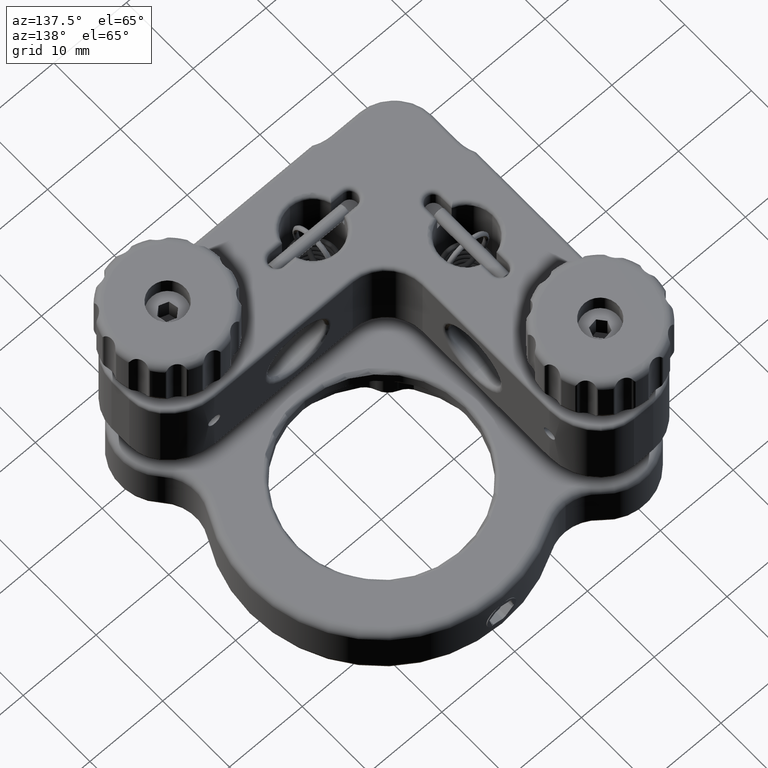
[diagram: clean part render]
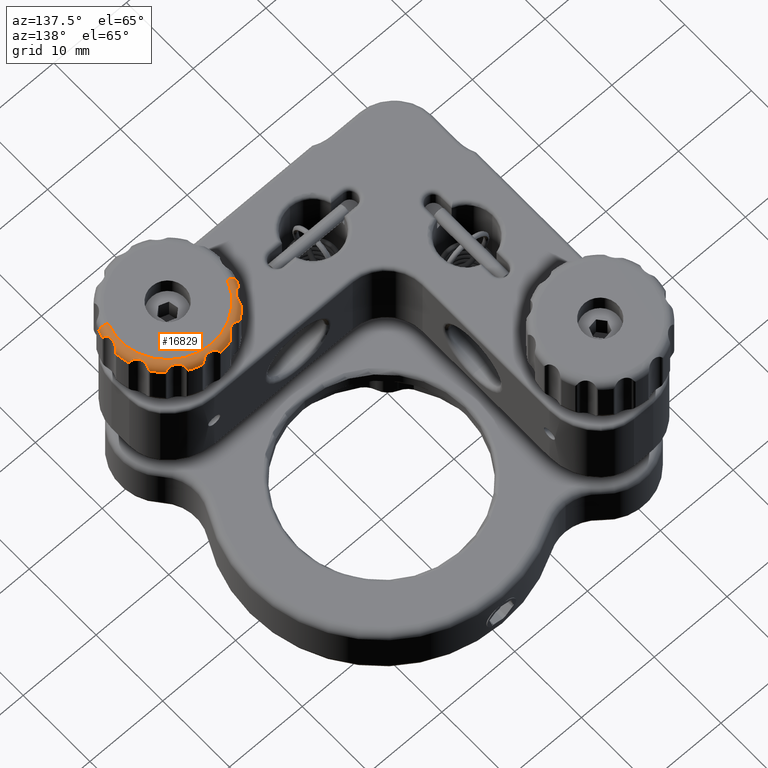
[diagram: same view with one face highlighted and labeled with its STEP entity id]
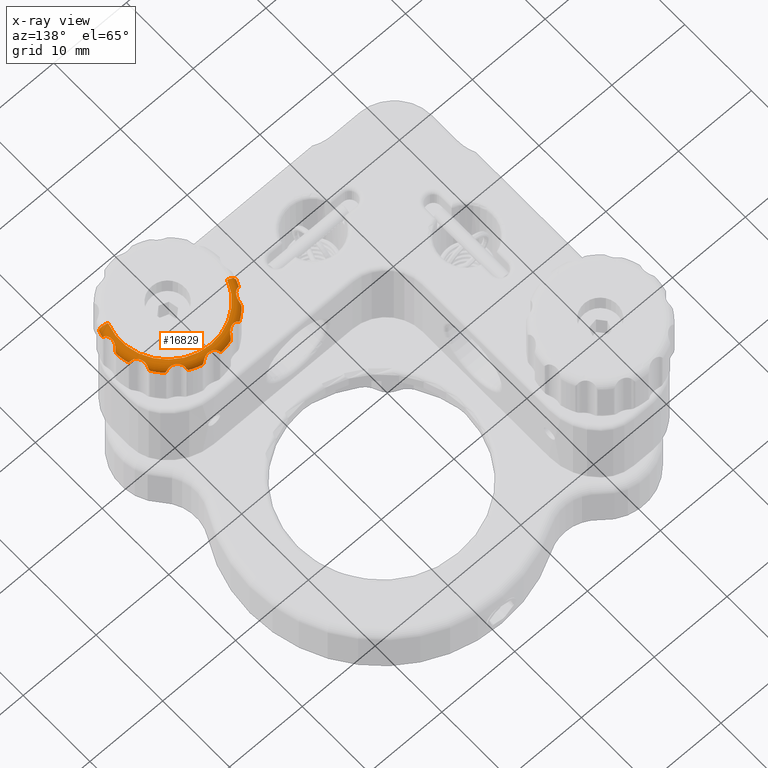
[diagram: x-ray of the same camera — body ghosted, the highlighted face saturated]
A machine part, auxiliary view. The second image highlights one B-rep face of the part: STEP entity #16829.
The next image is the same camera in x-ray: the body ghosted, the highlighted face saturated — about 0% of this face is hidden behind the body in this view.
In plain terms, the highlighted toroidal blend (fillet) surface has major radius 6.5 mm and minor (blend) radius 1 mm.
Its self-contained STEP definition (entity closure, byte-faithful):
#52 = CARTESIAN_POINT ( 'NONE',  ( 37.76544719378181725, 2.379093763780638859, 17.17477800642823738 ) ) ;
#66 = CARTESIAN_POINT ( 'NONE',  ( 24.27866866679519120, 3.327717702762500451, 16.43155508000020859 ) ) ;
#115 = ORIENTED_EDGE ( 'NONE', *, *, #9406, .T. ) ;
#117 = CARTESIAN_POINT ( 'NONE',  ( 27.08620670359334781, 6.282824898060004770, 16.86299989517619480 ) ) ;
#191 = CARTESIAN_POINT ( 'NONE',  ( 28.43166287069869469, 6.566413995580349550, 17.27399028622135546 ) ) ;
#193 = EDGE_CURVE ( 'NONE', #12512, #23707, #22086, .T. ) ;
#258 = CARTESIAN_POINT ( 'NONE',  ( 32.81105756854490352, 7.278511001537226299, 16.57745420283569970 ) ) ;
#268 = CARTESIAN_POINT ( 'NONE',  ( 24.27866866679519120, 3.327717702762500451, 16.43155508000020859 ) ) ;
#311 = B_SPLINE_CURVE_WITH_KNOTS ( 'NONE', 3,
 ( #17035, #13212, #12967, #18714, #5245, #14889, #3342, #11094, #19218, #3223, #17170, #24917, #24785, #7519 ),
 .UNSPECIFIED., .F., .F.,
 ( 4, 2, 2, 2, 2, 2, 4 ),
 ( 0.0004549188434784758777, 0.0007454011220209078373, 0.001035883400563339905, 0.001616847957648207511, 0.002197812514733075984, 0.002488294793275510654, 0.002778777071817944890 ),
 .UNSPECIFIED. ) ;
#321 = DIRECTION ( 'NONE',  ( 2.163821192866276569E-17, -6.251245436143288021E-17, -1.000000000000000000 ) ) ;
#380 = CARTESIAN_POINT ( 'NONE',  ( 38.17647115215053333, -1.587322412170117047, 16.97253295274547824 ) ) ;
#382 = CARTESIAN_POINT ( 'NONE',  ( 36.12653657933960716, 5.432556354113025066, 16.72262169492749706 ) ) ;
#417 = CARTESIAN_POINT ( 'NONE',  ( 24.46914313112054273, 3.484189321045987775, 16.86299989517620190 ) ) ;
#425 = ORIENTED_EDGE ( 'NONE', *, *, #7481, .T. ) ;
#455 = VERTEX_POINT ( 'NONE', #17483 ) ;
#535 = CARTESIAN_POINT ( 'NONE',  ( 34.49810638636336080, 6.479438514903956836, 16.94416161686852007 ) ) ;
#717 = CARTESIAN_POINT ( 'NONE',  ( 36.26575391880941623, 5.340583831992932851, 16.43155508000020859 ) ) ;
#768 = AXIS2_PLACEMENT_3D ( 'NONE', #24717, #13392, #1617 ) ;
#777 = CARTESIAN_POINT ( 'NONE',  ( 25.57764956148147562, 5.121636911701532568, 16.72515179860782197 ) ) ;
#911 = CARTESIAN_POINT ( 'NONE',  ( 34.76842440557869907, 5.958542757001199064, 17.27444478420911622 ) ) ;
#957 = DIRECTION ( 'NONE',  ( 2.163821192866276569E-17, -6.251245436143288021E-17, -1.000000000000000000 ) ) ;
#1027 = ORIENTED_EDGE ( 'NONE', *, *, #1309, .T. ) ;
#1030 = CARTESIAN_POINT ( 'NONE',  ( 37.08964572481735900, -2.272930915407224362, 17.43155508000024412 ) ) ;
#1066 = VERTEX_POINT ( 'NONE', #1030 ) ;
#1151 = CARTESIAN_POINT ( 'NONE',  ( 38.46637500377173779, 0.3547219916117436700, 16.65465079033253559 ) ) ;
#1293 = CARTESIAN_POINT ( 'NONE',  ( 28.85853647951745060, 7.155989088194765202, 16.72262169492747930 ) ) ;
#1309 = EDGE_CURVE ( 'NONE', #5777, #14584, #5394, .T. ) ;
#1407 = CARTESIAN_POINT ( 'NONE',  ( 26.84301516957355105, 6.242553733817931771, 16.43155508000019438 ) ) ;
#1427 = CARTESIAN_POINT ( 'NONE',  ( 29.00779568985854340, 7.230568579762935322, 16.43155508000020149 ) ) ;
#1583 = CIRCLE ( 'NONE', #768, 6.500000000000021316 ) ;
#1617 = DIRECTION ( 'NONE',  ( 0.9368685730488215402, -0.3496816792934180351, 0.000000000000000000 ) ) ;
#1748 = DIRECTION ( 'NONE',  ( -2.163821192866276569E-17, 6.251245436143288021E-17, 1.000000000000000000 ) ) ;
#1750 = VERTEX_POINT ( 'NONE', #17286 ) ;
#2062 = DIRECTION ( 'NONE',  ( 2.163821192866276569E-17, -6.251245436143288021E-17, -1.000000000000000000 ) ) ;
#2076 = CARTESIAN_POINT ( 'NONE',  ( 28.76194796046159752, 6.965226959816559926, 17.01490933152842189 ) ) ;
#2085 = DIRECTION ( 'NONE',  ( 0.9368685730488217622, -0.3496816792934172580, 0.000000000000000000 ) ) ;
#2089 = CARTESIAN_POINT ( 'NONE',  ( 30.99999999999999645, 7.806757977350286959E-17, 16.43155508000023701 ) ) ;
#2224 = CARTESIAN_POINT ( 'NONE',  ( 37.08964572481735900, -2.272930915407224806, 16.43155508000023701 ) ) ;
#2293 = ORIENTED_EDGE ( 'NONE', *, *, #18213, .F. ) ;
#2440 = CARTESIAN_POINT ( 'NONE',  ( 38.23056857976288114, 1.992204310141588275, 16.43155508000024412 ) ) ;
#2537 = CARTESIAN_POINT ( 'NONE',  ( 36.03461829388389503, 5.426258867908665628, 16.86299989517819853 ) ) ;
#2561 = CARTESIAN_POINT ( 'NONE',  ( 34.51890683030401874, 6.413758395174952831, 17.01531736824014729 ) ) ;
#2582 = CARTESIAN_POINT ( 'NONE',  ( 28.79444236587353956, 7.025045029976944910, 16.94475072643776770 ) ) ;
#2589 = CARTESIAN_POINT ( 'NONE',  ( 37.44913426673232237, 2.729179706982604703, 17.29749177960178841 ) ) ;
#2611 = CIRCLE ( 'NONE', #12305, 7.500000000000023093 ) ;
#2673 = CARTESIAN_POINT ( 'NONE',  ( 38.26800009982223827, -1.723432734081720596, 16.72262169492747219 ) ) ;
#2833 = ORIENTED_EDGE ( 'NONE', *, *, #21851, .F. ) ;
#3096 = DIRECTION ( 'NONE',  ( 2.163821192866276569E-17, -6.251245436143288021E-17, -1.000000000000000000 ) ) ;
#3201 = TOROIDAL_SURFACE ( 'NONE', #12513, 6.500000000000000000, 1.000000000000000000 ) ;
#3223 = CARTESIAN_POINT ( 'NONE',  ( 25.55692076569005167, 4.669502255886939679, 17.17477800642829777 ) ) ;
#3314 = CARTESIAN_POINT ( 'NONE',  ( 38.48470253318901513, 0.4787775993869842206, 16.43155508000024412 ) ) ;
#3318 = B_SPLINE_CURVE_WITH_KNOTS ( 'NONE', 3,
 ( #6854, #22110, #2673, #10290 ),
 .UNSPECIFIED., .F., .F.,
 ( 4, 4 ),
 ( -6.324575239409382928E-06, 0.0004951179910539874615 ),
 .UNSPECIFIED. ) ;
#3342 = CARTESIAN_POINT ( 'NONE',  ( 25.18706070971202848, 3.904510257692811237, 17.29766874251204101 ) ) ;
#3496 = CARTESIAN_POINT ( 'NONE',  ( 24.31464230751540967, 3.400377339227924178, 16.57659197019409092 ) ) ;
#3555 = CARTESIAN_POINT ( 'NONE',  ( 32.60245357432432911, 7.186646275752867297, 16.94475072643775349 ) ) ;
#3565 = CARTESIAN_POINT ( 'NONE',  ( 28.92916636130763308, 7.208904213328318988, 16.57745420283586668 ) ) ;
#3897 = B_SPLINE_CURVE_WITH_KNOTS ( 'NONE', 3,
 ( #10194, #21892, #13614, #11982, #12102, #19863, #17955, #2589, #17431, #52, #7777, #15540, #23288, #5891 ),
 .UNSPECIFIED., .F., .F.,
 ( 4, 2, 2, 2, 2, 2, 4 ),
 ( 0.0004549188434784996217, 0.0007454011220209483864, 0.001035883400563397151, 0.001616847957648290994, 0.002197812514733185271, 0.002488294793275632084, 0.002778777071818078898 ),
 .UNSPECIFIED. ) ;
#4034 = CARTESIAN_POINT ( 'NONE',  ( 24.91035427518263745, 2.272930915407226138, 17.43155508000024412 ) ) ;
#4057 = ORIENTED_EDGE ( 'NONE', *, *, #16731, .F. ) ;
#4230 = VERTEX_POINT ( 'NONE', #4034 ) ;
#4457 = CARTESIAN_POINT ( 'NONE',  ( 38.15598908819477231, 2.141463520482623117, 16.72262169492753259 ) ) ;
#4475 = DIRECTION ( 'NONE',  ( -0.3496816792934181461, -0.9368685730488216512, 5.099946763125353717E-17 ) ) ;
#4547 = ORIENTED_EDGE ( 'NONE', *, *, #24429, .T. ) ;
#4551 = VERTEX_POINT ( 'NONE', #7761 ) ;
#4653 = VERTEX_POINT ( 'NONE', #10066 ) ;
#4827 = CARTESIAN_POINT ( 'NONE',  ( 35.75653682107640918, 5.430996901503164054, 17.13044508328783522 ) ) ;
#4955 = CARTESIAN_POINT ( 'NONE',  ( 25.57066116081718476, 5.079573641080158630, 16.79434379808308719 ) ) ;
#5014 = B_SPLINE_CURVE_WITH_KNOTS ( 'NONE', 3,
 ( #8351, #16095, #19558, #13555, #21326, #11663 ),
 .UNSPECIFIED., .F., .F.,
 ( 4, 2, 4 ),
 ( 0.0004549188434784990254, 0.0008384482362595463163, 0.001221977629040593444 ),
 .UNSPECIFIED. ) ;
#5069 = CARTESIAN_POINT ( 'NONE',  ( 34.46011638478702821, 6.619797369593358738, 16.72261103384388292 ) ) ;
#5116 = DIRECTION ( 'NONE',  ( 0.3496816792934182017, 0.9368685730488214292, -5.099946763125352485E-17 ) ) ;
#5166 = AXIS2_PLACEMENT_3D ( 'NONE', #23137, #2062, #23269 ) ;
#5185 = CARTESIAN_POINT ( 'NONE',  ( 34.32771770276245604, 6.721331333204919822, 16.43155508000019438 ) ) ;
#5215 = ORIENTED_EDGE ( 'NONE', *, *, #10953, .F. ) ;
#5227 = ORIENTED_EDGE ( 'NONE', *, *, #13418, .T. ) ;
#5245 = CARTESIAN_POINT ( 'NONE',  ( 24.80921866294858091, 3.619583833940055229, 17.17505554152444702 ) ) ;
#5336 = CARTESIAN_POINT ( 'NONE',  ( 32.64697790690708956, 7.216587174061397825, 16.86299989517818432 ) ) ;
#5381 = ORIENTED_EDGE ( 'NONE', *, *, #8027, .F. ) ;
#5394 = B_SPLINE_CURVE_WITH_KNOTS ( 'NONE', 3,
 ( #117, #15717, #23211, #7838 ),
 .UNSPECIFIED., .F., .F.,
 ( 4, 4 ),
 ( 6.473662859734410294E-16, 0.0004984791478706766636 ),
 .UNSPECIFIED. ) ;
#5399 = EDGE_CURVE ( 'NONE', #5777, #18356, #14671, .T. ) ;
#5461 = CARTESIAN_POINT ( 'NONE',  ( 37.98138463120050545, -0.5330863253571455074, 17.29728995087512899 ) ) ;
#5562 = CARTESIAN_POINT ( 'NONE',  ( 38.46637500377173779, 0.3547219916117436700, 16.65465079033253559 ) ) ;
#5584 = DIRECTION ( 'NONE',  ( 2.163821192866276569E-17, -6.251245436143288021E-17, -1.000000000000000000 ) ) ;
#5681 = B_SPLINE_CURVE_WITH_KNOTS ( 'NONE', 3,
 ( #6995, #22732, #19522, #23320, #7232, #21420, #14859, #12820, #5926, #22864, #13648, #12936, #3555, #5336 ),
 .UNSPECIFIED., .F., .F.,
 ( 4, 2, 2, 2, 2, 2, 4 ),
 ( 0.0004549188434784849850, 0.0007454011220209284371, 0.001035883400563371998, 0.001616847957648251313, 0.002197812514733131061, 0.002488294793275563129, 0.002778777071817995631 ),
 .UNSPECIFIED. ) ;
#5731 = CARTESIAN_POINT ( 'NONE',  ( 30.52122240061315495, 7.484702533189008022, 16.43155508000020859 ) ) ;
#5777 = VERTEX_POINT ( 'NONE', #13544 ) ;
#5891 = CARTESIAN_POINT ( 'NONE',  ( 38.07323677481563351, 2.181968880177531211, 16.86299989517822695 ) ) ;
#5901 = CARTESIAN_POINT ( 'NONE',  ( 24.46914313112054273, 3.484189321045987775, 16.86299989517620190 ) ) ;
#5926 = CARTESIAN_POINT ( 'NONE',  ( 32.05896179833249704, 6.970849896588889649, 17.27399028622136612 ) ) ;
#6004 = CARTESIAN_POINT ( 'NONE',  ( 27.13769483701558016, 6.269168253183230455, 16.94416161686855204 ) ) ;
#6242 = CARTESIAN_POINT ( 'NONE',  ( 34.48418932104596735, 6.530856868879512334, 16.86299989517619480 ) ) ;
#6247 = AXIS2_PLACEMENT_3D ( 'NONE', #8162, #19746, #24042 ) ;
#6445 = CARTESIAN_POINT ( 'NONE',  ( 38.21658717406142358, -1.646977906906948341, 16.86299989517817721 ) ) ;
#6509 = CARTESIAN_POINT ( 'NONE',  ( 27.44841800980895741, 6.230042219845330465, 17.17505554152442571 ) ) ;
#6547 = CARTESIAN_POINT ( 'NONE',  ( 25.60694825114216044, 5.200134079850954549, 16.58100138697245995 ) ) ;
#6625 = CARTESIAN_POINT ( 'NONE',  ( 37.28749200446641510, 4.089500925463884329, 16.57659197019433606 ) ) ;
#6655 = CARTESIAN_POINT ( 'NONE',  ( 38.39798261745273322, 0.2480319708194831385, 16.86299989517624098 ) ) ;
#6660 = CIRCLE ( 'NONE', #20041, 7.500000000000026645 ) ;
#6739 = CARTESIAN_POINT ( 'NONE',  ( 35.66950225588690415, 5.443079234310069126, 17.17477800642822316 ) ) ;
#6790 = ORIENTED_EDGE ( 'NONE', *, *, #18619, .T. ) ;
#6847 = AXIS2_PLACEMENT_3D ( 'NONE', #24411, #3096, #14380 ) ;
#6854 = CARTESIAN_POINT ( 'NONE',  ( 38.25795822895101139, -1.889984747769953177, 16.43155508000020149 ) ) ;
#6899 = CARTESIAN_POINT ( 'NONE',  ( 30.99999999999999645, 7.806757977350286959E-17, 16.43155508000023701 ) ) ;
#6921 = AXIS2_PLACEMENT_3D ( 'NONE', #6899, #957, #8694 ) ;
#6995 = CARTESIAN_POINT ( 'NONE',  ( 30.75196802918060968, 7.397982617452733223, 16.86299989517620901 ) ) ;
#7062 = CARTESIAN_POINT ( 'NONE',  ( 25.59197894936786710, 5.160028265833335404, 16.65465079033289086 ) ) ;
#7096 = CARTESIAN_POINT ( 'NONE',  ( 34.48418932104596735, 6.530856868879512334, 16.86299989517619480 ) ) ;
#7194 = DIRECTION ( 'NONE',  ( 2.163821192866276569E-17, -6.251245436143288021E-17, -1.000000000000000000 ) ) ;
#7232 = CARTESIAN_POINT ( 'NONE',  ( 31.03926088279389717, 7.171165824131164435, 17.17505554152442571 ) ) ;
#7240 = CARTESIAN_POINT ( 'NONE',  ( 28.81803111982255317, 7.073236774815620187, 16.86299989517819142 ) ) ;
#7257 = EDGE_CURVE ( 'NONE', #20132, #20389, #10666, .T. ) ;
#7260 = CIRCLE ( 'NONE', #12525, 0.9999999999999991118 ) ;
#7287 = B_SPLINE_CURVE_WITH_KNOTS ( 'NONE', 3,
 ( #6242, #535, #2561, #10543, #19949, #911, #8646, #8266, #10297, #6739, #4827, #12565, #18049, #10679 ),
 .UNSPECIFIED., .F., .F.,
 ( 4, 2, 2, 2, 2, 2, 4 ),
 ( 0.0004549188434784955559, 0.0007454011220209332076, 0.001035883400563370913, 0.001616847957648247626, 0.002197812514733124556, 0.002488294793275574405, 0.002778777071818024254 ),
 .UNSPECIFIED. ) ;
#7481 = EDGE_CURVE ( 'NONE', #20279, #9903, #16519, .T. ) ;
#7519 = CARTESIAN_POINT ( 'NONE',  ( 25.57374113209142763, 5.034618293883854179, 16.86299989517819142 ) ) ;
#7571 = EDGE_CURVE ( 'NONE', #21447, #14454, #5014, .T. ) ;
#7583 = AXIS2_PLACEMENT_3D ( 'NONE', #2089, #321, #21385 ) ;
#7761 = CARTESIAN_POINT ( 'NONE',  ( 38.07323677481563351, 2.181968880177531211, 16.86299989517822695 ) ) ;
#7777 = CARTESIAN_POINT ( 'NONE',  ( 37.83478017183981024, 2.325112874038128830, 17.13044508328785298 ) ) ;
#7838 = CARTESIAN_POINT ( 'NONE',  ( 26.84301516957355105, 6.242553733817931771, 16.43155508000019438 ) ) ;
#7907 = CARTESIAN_POINT ( 'NONE',  ( 28.62090623621948993, 6.765447193781855439, 17.17477800642824448 ) ) ;
#7976 = CARTESIAN_POINT ( 'NONE',  ( 36.03461829388389503, 5.426258867908665628, 16.86299989517819853 ) ) ;
#8027 = EDGE_CURVE ( 'NONE', #20279, #17933, #24899, .T. ) ;
#8100 = CARTESIAN_POINT ( 'NONE',  ( 37.96025336617450563, -0.9232926180051235221, 17.28686887418773210 ) ) ;
#8113 = ORIENTED_EDGE ( 'NONE', *, *, #14200, .F. ) ;
#8130 = EDGE_CURVE ( 'NONE', #21841, #9944, #2611, .T. ) ;
#8142 = CARTESIAN_POINT ( 'NONE',  ( 38.07323677481563351, 2.181968880177531211, 16.86299989517822695 ) ) ;
#8150 = ORIENTED_EDGE ( 'NONE', *, *, #22861, .T. ) ;
#8162 = CARTESIAN_POINT ( 'NONE',  ( 30.99999999999999645, 7.806757977350286959E-17, 16.43155508000023701 ) ) ;
#8266 = CARTESIAN_POINT ( 'NONE',  ( 35.22052425391566288, 5.588106091106062046, 17.29749177960177775 ) ) ;
#8351 = CARTESIAN_POINT ( 'NONE',  ( 38.39798261745273322, 0.2480319708194831385, 16.86299989517624098 ) ) ;
#8424 = ORIENTED_EDGE ( 'NONE', *, *, #18921, .F. ) ;
#8495 = B_SPLINE_CURVE_WITH_KNOTS ( 'NONE', 3,
 ( #16457, #23937, #6547, #7062 ),
 .UNSPECIFIED., .F., .F.,
 ( 4, 4 ),
 ( -6.324575239420091965E-06, 0.0002498727217915970816 ),
 .UNSPECIFIED. ) ;
#8504 = ORIENTED_EDGE ( 'NONE', *, *, #16342, .F. ) ;
#8646 = CARTESIAN_POINT ( 'NONE',  ( 34.90451025769281301, 5.812939290288077210, 17.29766874251198416 ) ) ;
#8694 = DIRECTION ( 'NONE',  ( 0.9368685730488236496, -0.3496816792934123175, 0.000000000000000000 ) ) ;
#8753 = CARTESIAN_POINT ( 'NONE',  ( 34.40037733922808627, 6.685357692484603653, 16.57659197019397013 ) ) ;
#8870 = ORIENTED_EDGE ( 'NONE', *, *, #14389, .T. ) ;
#9202 = CARTESIAN_POINT ( 'NONE',  ( 38.25795822895101139, -1.889984747769953177, 16.43155508000020149 ) ) ;
#9296 = AXIS2_PLACEMENT_3D ( 'NONE', #2224, #4475, #2085 ) ;
#9406 = EDGE_CURVE ( 'NONE', #20812, #17933, #19490, .T. ) ;
#9491 = VERTEX_POINT ( 'NONE', #3314 ) ;
#9600 = FACE_OUTER_BOUND ( 'NONE', #24338, .T. ) ;
#9612 = ORIENTED_EDGE ( 'NONE', *, *, #14320, .F. ) ;
#9755 = CARTESIAN_POINT ( 'NONE',  ( 38.01154924037034277, -0.4045662102049463194, 17.28573920594424607 ) ) ;
#9903 = VERTEX_POINT ( 'NONE', #2537 ) ;
#9944 = VERTEX_POINT ( 'NONE', #268 ) ;
#10066 = CARTESIAN_POINT ( 'NONE',  ( 32.88998474777007175, 7.257958228950989188, 16.43155508000019438 ) ) ;
#10135 = CARTESIAN_POINT ( 'NONE',  ( 37.95582355206950353, -0.7915755192740636659, 17.29786068723631942 ) ) ;
#10145 = ORIENTED_EDGE ( 'NONE', *, *, #21963, .T. ) ;
#10194 = CARTESIAN_POINT ( 'NONE',  ( 37.28282489806002076, 3.913793296406797850, 16.86299989517620190 ) ) ;
#10237 = VERTEX_POINT ( 'NONE', #1151 ) ;
#10283 = B_SPLINE_CURVE_WITH_KNOTS ( 'NONE', 3,
 ( #11542, #258, #23598, #19553 ),
 .UNSPECIFIED., .F., .F.,
 ( 4, 4 ),
 ( -6.324575239410227420E-06, 0.0004951179910540020983 ),
 .UNSPECIFIED. ) ;
#10290 = CARTESIAN_POINT ( 'NONE',  ( 38.21658717406142358, -1.646977906906948341, 16.86299989517817721 ) ) ;
#10297 = CARTESIAN_POINT ( 'NONE',  ( 35.40251276728753993, 5.507452197247987513, 17.27399028622132704 ) ) ;
#10318 = CARTESIAN_POINT ( 'NONE',  ( 27.72396280569065397, 6.242822645973056694, 17.27444478420915175 ) ) ;
#10357 = CARTESIAN_POINT ( 'NONE',  ( 32.64697790690708956, 7.216587174061397825, 16.86299989517818432 ) ) ;
#10379 = CARTESIAN_POINT ( 'NONE',  ( 38.03729602291654288, -1.294579407251779335, 17.19287561434090605 ) ) ;
#10543 = CARTESIAN_POINT ( 'NONE',  ( 34.57975771163138745, 6.269024991207245101, 17.13080414942131924 ) ) ;
#10666 = B_SPLINE_CURVE_WITH_KNOTS ( 'NONE', 3,
 ( #10676, #777, #4955, #16389 ),
 .UNSPECIFIED., .F., .F.,
 ( 4, 4 ),
 ( 0.0002498727217915970816, 0.0004951179910540207466 ),
 .UNSPECIFIED. ) ;
#10676 = CARTESIAN_POINT ( 'NONE',  ( 25.59197894936786710, 5.160028265833335404, 16.65465079033289086 ) ) ;
#10679 = CARTESIAN_POINT ( 'NONE',  ( 36.03461829388389503, 5.426258867908665628, 16.86299989517819853 ) ) ;
#10864 = B_SPLINE_CURVE_WITH_KNOTS ( 'NONE', 3,
 ( #5901, #24694, #3496, #66 ),
 .UNSPECIFIED., .F., .F.,
 ( 4, 4 ),
 ( 6.714253880606855395E-16, 0.0004984791478706594248 ),
 .UNSPECIFIED. ) ;
#10895 = ORIENTED_EDGE ( 'NONE', *, *, #12315, .F. ) ;
#10953 = EDGE_CURVE ( 'NONE', #4653, #1750, #6660, .T. ) ;
#11011 = CARTESIAN_POINT ( 'NONE',  ( 30.99999999999999645, 7.806757977350286959E-17, 16.43155508000023701 ) ) ;
#11094 = CARTESIAN_POINT ( 'NONE',  ( 25.41189390889404720, 4.220524253915641566, 17.29749177960182394 ) ) ;
#11127 = VERTEX_POINT ( 'NONE', #20139 ) ;
#11214 = ORIENTED_EDGE ( 'NONE', *, *, #13795, .T. ) ;
#11410 = VERTEX_POINT ( 'NONE', #9202 ) ;
#11542 = CARTESIAN_POINT ( 'NONE',  ( 32.88998474777007175, 7.257958228950989188, 16.43155508000019438 ) ) ;
#11663 = CARTESIAN_POINT ( 'NONE',  ( 38.05602068583043263, -0.2854181332058912668, 17.25883431209270213 ) ) ;
#11882 = B_SPLINE_CURVE_WITH_KNOTS ( 'NONE', 3,
 ( #19153, #13280, #21053, #21431 ),
 .UNSPECIFIED., .F., .F.,
 ( 4, 4 ),
 ( 0.0002437774083436085814, 0.0004984791478706675563 ),
 .UNSPECIFIED. ) ;
#11938 = B_SPLINE_CURVE_WITH_KNOTS ( 'NONE', 3,
 ( #2440, #18187, #4457, #8142 ),
 .UNSPECIFIED., .F., .F.,
 ( 4, 4 ),
 ( -6.324575239411873205E-06, 0.0004951179910539912563 ),
 .UNSPECIFIED. ) ;
#11982 = CARTESIAN_POINT ( 'NONE',  ( 37.23467361326964209, 3.639256043529312201, 17.13080414942133700 ) ) ;
#12036 = ORIENTED_EDGE ( 'NONE', *, *, #14393, .F. ) ;
#12102 = CARTESIAN_POINT ( 'NONE',  ( 37.23004221984529494, 3.551581990191166494, 17.17505554152437952 ) ) ;
#12305 = AXIS2_PLACEMENT_3D ( 'NONE', #17257, #5584, #25121 ) ;
#12315 = EDGE_CURVE ( 'NONE', #15598, #23707, #23860, .T. ) ;
#12512 = VERTEX_POINT ( 'NONE', #18085 ) ;
#12513 = AXIS2_PLACEMENT_3D ( 'NONE', #17339, #1748, #25085 ) ;
#12525 = AXIS2_PLACEMENT_3D ( 'NONE', #20112, #5116, #18584 ) ;
#12565 = CARTESIAN_POINT ( 'NONE',  ( 35.91303747055611950, 5.420823401140180131, 17.01490933152839702 ) ) ;
#12820 = CARTESIAN_POINT ( 'NONE',  ( 31.86102817562640155, 6.949703960898163224, 17.29749177960181328 ) ) ;
#12869 = VERTEX_POINT ( 'NONE', #10357 ) ;
#12922 = CIRCLE ( 'NONE', #6847, 7.500000000000025757 ) ;
#12936 = CARTESIAN_POINT ( 'NONE',  ( 32.54440355867650680, 7.151089510094577051, 17.01490933152842899 ) ) ;
#12967 = CARTESIAN_POINT ( 'NONE',  ( 24.58624160482508003, 3.518906830304001421, 17.01531736824020768 ) ) ;
#13039 = CARTESIAN_POINT ( 'NONE',  ( 30.52122240061315495, 7.484702533189008022, 16.43155508000020859 ) ) ;
#13212 = CARTESIAN_POINT ( 'NONE',  ( 24.52056148509605649, 3.498106386363319942, 16.94416161686854849 ) ) ;
#13280 = CARTESIAN_POINT ( 'NONE',  ( 38.48134653065172017, 0.3948337671284699590, 16.58099043940790196 ) ) ;
#13392 = DIRECTION ( 'NONE',  ( -2.163821192866276569E-17, 6.251245436143288021E-17, 1.000000000000000000 ) ) ;
#13404 = CARTESIAN_POINT ( 'NONE',  ( 38.39798261745273322, 0.2480319708194831385, 16.86299989517624098 ) ) ;
#13418 = EDGE_CURVE ( 'NONE', #11410, #15761, #3318, .T. ) ;
#13544 = CARTESIAN_POINT ( 'NONE',  ( 27.08620670359334781, 6.282824898060004770, 16.86299989517619480 ) ) ;
#13555 = CARTESIAN_POINT ( 'NONE',  ( 38.15837605688665235, -0.05852519002116760710, 17.18996833005895652 ) ) ;
#13614 = CARTESIAN_POINT ( 'NONE',  ( 37.25434190618130970, 3.795024288805237234, 17.01531736824015084 ) ) ;
#13632 = B_SPLINE_CURVE_WITH_KNOTS ( 'NONE', 3,
 ( #1427, #3565, #1293, #7240 ),
 .UNSPECIFIED., .F., .F.,
 ( 4, 4 ),
 ( -6.324575239435623161E-06, 0.0004951179910540161929 ),
 .UNSPECIFIED. ) ;
#13648 = CARTESIAN_POINT ( 'NONE',  ( 32.40378327033683092, 7.081649695114466958, 17.13044508328786364 ) ) ;
#13658 = CARTESIAN_POINT ( 'NONE',  ( 38.42976463052369240, 0.2799752503878738530, 16.79434379808161637 ) ) ;
#13795 = EDGE_CURVE ( 'NONE', #4653, #12869, #10283, .T. ) ;
#13867 = CARTESIAN_POINT ( 'NONE',  ( 27.20497571119486224, 6.254341906181346999, 17.01531736824018992 ) ) ;
#13993 = B_SPLINE_CURVE_WITH_KNOTS ( 'NONE', 3,
 ( #13404, #13658, #21308, #5562 ),
 .UNSPECIFIED., .F., .F.,
 ( 4, 4 ),
 ( 6.433082686906403972E-16, 0.0002437774083436085814 ),
 .UNSPECIFIED. ) ;
#14200 = EDGE_CURVE ( 'NONE', #16215, #1066, #21039, .T. ) ;
#14234 = CARTESIAN_POINT ( 'NONE',  ( 27.08620670359334781, 6.282824898060004770, 16.86299989517619480 ) ) ;
#14313 = ORIENTED_EDGE ( 'NONE', *, *, #8130, .F. ) ;
#14320 = EDGE_CURVE ( 'NONE', #20812, #4551, #3897, .T. ) ;
#14362 = CARTESIAN_POINT ( 'NONE',  ( 37.24255373381795664, 4.156984830426559085, 16.43155508000020149 ) ) ;
#14380 = DIRECTION ( 'NONE',  ( 0.9368685730488305330, -0.3496816792933938878, 0.000000000000000000 ) ) ;
#14389 = EDGE_CURVE ( 'NONE', #21841, #4230, #7260, .T. ) ;
#14393 = EDGE_CURVE ( 'NONE', #16848, #9491, #12922, .T. ) ;
#14454 = VERTEX_POINT ( 'NONE', #24290 ) ;
#14584 = VERTEX_POINT ( 'NONE', #1407 ) ;
#14671 = B_SPLINE_CURVE_WITH_KNOTS ( 'NONE', 3,
 ( #14234, #6004, #13867, #15658, #6509, #10318, #19856, #19475, #191, #7907, #23775, #2076, #2582, #16035 ),
 .UNSPECIFIED., .F., .F.,
 ( 4, 2, 2, 2, 2, 2, 4 ),
 ( 0.0004549188434785091627, 0.0007454011220209393876, 0.001035883400563369612, 0.001616847957648233315, 0.002197812514733096800, 0.002488294793275534073, 0.002778777071817970911 ),
 .UNSPECIFIED. ) ;
#14859 = CARTESIAN_POINT ( 'NONE',  ( 31.47493542735497485, 6.986408224892498353, 17.29766874251202324 ) ) ;
#14889 = CARTESIAN_POINT ( 'NONE',  ( 25.04145724299888087, 3.768424405578697289, 17.27444478420916951 ) ) ;
#14937 = DIRECTION ( 'NONE',  ( 0.9368685730488128804, -0.3496816792934412943, 0.000000000000000000 ) ) ;
#15096 = CARTESIAN_POINT ( 'NONE',  ( 38.05602068583043263, -0.2854181332058912668, 17.25883431209270213 ) ) ;
#15397 = CARTESIAN_POINT ( 'NONE',  ( 38.21658717406142358, -1.646977906906948341, 16.86299989517817721 ) ) ;
#15478 = ORIENTED_EDGE ( 'NONE', *, *, #17824, .F. ) ;
#15518 = CARTESIAN_POINT ( 'NONE',  ( 23.97348570213381080, 2.622612594700644451, 16.43155508000023701 ) ) ;
#15540 = CARTESIAN_POINT ( 'NONE',  ( 37.96522695981652618, 2.238052039538510840, 17.01490933152842189 ) ) ;
#15550 = CARTESIAN_POINT ( 'NONE',  ( 37.30644737407301648, 4.002854497579736659, 16.72261103384389713 ) ) ;
#15598 = VERTEX_POINT ( 'NONE', #16452 ) ;
#15658 = CARTESIAN_POINT ( 'NONE',  ( 27.36074395647078106, 6.234673613269671399, 17.13080414942136187 ) ) ;
#15717 = CARTESIAN_POINT ( 'NONE',  ( 26.99714550242039834, 6.306447374073026246, 16.72261103384387582 ) ) ;
#15761 = VERTEX_POINT ( 'NONE', #15397 ) ;
#15776 = ORIENTED_EDGE ( 'NONE', *, *, #23927, .F. ) ;
#15813 = ORIENTED_EDGE ( 'NONE', *, *, #22700, .T. ) ;
#15955 = CARTESIAN_POINT ( 'NONE',  ( 28.81803111982255317, 7.073236774815620187, 16.86299989517819142 ) ) ;
#16035 = CARTESIAN_POINT ( 'NONE',  ( 28.81803111982255317, 7.073236774815620187, 16.86299989517819142 ) ) ;
#16095 = CARTESIAN_POINT ( 'NONE',  ( 38.34837680669991045, 0.1981744530608174903, 16.97015929227927344 ) ) ;
#16112 = CARTESIAN_POINT ( 'NONE',  ( 30.75196802918060968, 7.397982617452733223, 16.86299989517620901 ) ) ;
#16215 = VERTEX_POINT ( 'NONE', #20953 ) ;
#16342 = EDGE_CURVE ( 'NONE', #14454, #15761, #19101, .T. ) ;
#16389 = CARTESIAN_POINT ( 'NONE',  ( 25.57374113209142763, 5.034618293883854179, 16.86299989517819142 ) ) ;
#16452 = CARTESIAN_POINT ( 'NONE',  ( 29.00779568985854340, 7.230568579762935322, 16.43155508000020149 ) ) ;
#16457 = CARTESIAN_POINT ( 'NONE',  ( 25.65941616800719416, 5.265753918809457090, 16.43155508000020149 ) ) ;
#16519 = B_SPLINE_CURVE_WITH_KNOTS ( 'NONE', 3,
 ( #23349, #21579, #382, #7976 ),
 .UNSPECIFIED., .F., .F.,
 ( 4, 4 ),
 ( -6.324575239414670954E-06, 0.0004951179910539800890 ),
 .UNSPECIFIED. ) ;
#16731 = EDGE_CURVE ( 'NONE', #1066, #4230, #1583, .T. ) ;
#16829 = ADVANCED_FACE ( 'NONE', ( #9600 ), #3201, .T. ) ;
#16848 = VERTEX_POINT ( 'NONE', #19141 ) ;
#17035 = CARTESIAN_POINT ( 'NONE',  ( 24.46914313112054273, 3.484189321045987775, 16.86299989517620190 ) ) ;
#17170 = CARTESIAN_POINT ( 'NONE',  ( 25.56900309849696384, 4.756536821076471355, 17.13044508328789561 ) ) ;
#17257 = CARTESIAN_POINT ( 'NONE',  ( 30.99999999999999645, 7.806757977350286959E-17, 16.43155508000023701 ) ) ;
#17286 = CARTESIAN_POINT ( 'NONE',  ( 34.32771770276245604, 6.721331333204919822, 16.43155508000019438 ) ) ;
#17339 = CARTESIAN_POINT ( 'NONE',  ( 30.99999999999999645, 7.806757977350286959E-17, 16.43155508000023701 ) ) ;
#17431 = CARTESIAN_POINT ( 'NONE',  ( 37.56641399558031935, 2.568337129301433208, 17.27399028622134125 ) ) ;
#17478 = ORIENTED_EDGE ( 'NONE', *, *, #5399, .F. ) ;
#17483 = CARTESIAN_POINT ( 'NONE',  ( 25.65941616800719416, 5.265753918809457090, 16.43155508000020149 ) ) ;
#17637 = CARTESIAN_POINT ( 'NONE',  ( 38.12581253996859942, -1.502139656849934557, 17.06170648565864312 ) ) ;
#17687 = ORIENTED_EDGE ( 'NONE', *, *, #7257, .T. ) ;
#17824 = EDGE_CURVE ( 'NONE', #17973, #20389, #311, .T. ) ;
#17876 = CIRCLE ( 'NONE', #6921, 7.500000000000022204 ) ;
#17933 = VERTEX_POINT ( 'NONE', #19334 ) ;
#17955 = CARTESIAN_POINT ( 'NONE',  ( 37.28787471764292150, 3.081897967199774158, 17.29766874251199127 ) ) ;
#17973 = VERTEX_POINT ( 'NONE', #417 ) ;
#18049 = CARTESIAN_POINT ( 'NONE',  ( 35.98108864162634291, 5.422591455652765902, 16.94475072643774638 ) ) ;
#18085 = CARTESIAN_POINT ( 'NONE',  ( 30.75196802918060968, 7.397982617452733223, 16.86299989517620901 ) ) ;
#18187 = CARTESIAN_POINT ( 'NONE',  ( 38.20890421332869380, 2.070833638690916523, 16.57745420283680815 ) ) ;
#18213 = EDGE_CURVE ( 'NONE', #12512, #12869, #5681, .T. ) ;
#18356 = VERTEX_POINT ( 'NONE', #15955 ) ;
#18584 = DIRECTION ( 'NONE',  ( -0.9368685730488214292, 0.3496816792934184237, 0.000000000000000000 ) ) ;
#18619 = EDGE_CURVE ( 'NONE', #17973, #9944, #10864, .T. ) ;
#18714 = CARTESIAN_POINT ( 'NONE',  ( 24.73097500879279309, 3.579757711631369688, 17.13080414942137253 ) ) ;
#18715 = CARTESIAN_POINT ( 'NONE',  ( 37.28282489806002076, 3.913793296406797850, 16.86299989517620190 ) ) ;
#18921 = EDGE_CURVE ( 'NONE', #455, #14584, #17876, .T. ) ;
#19101 = B_SPLINE_CURVE_WITH_KNOTS ( 'NONE', 3,
 ( #15096, #9755, #5461, #10135, #8100, #19685, #10379, #17637, #380, #6445 ),
 .UNSPECIFIED., .F., .F.,
 ( 4, 2, 2, 2, 4 ),
 ( 0.001221977629040593444, 0.001611177489734941931, 0.002000377350429290418, 0.002389577211123638904, 0.002778777071817987391 ),
 .UNSPECIFIED. ) ;
#19141 = CARTESIAN_POINT ( 'NONE',  ( 38.23056857976288114, 1.992204310141588275, 16.43155508000024412 ) ) ;
#19153 = CARTESIAN_POINT ( 'NONE',  ( 38.46637500377173779, 0.3547219916117436700, 16.65465079033253559 ) ) ;
#19218 = CARTESIAN_POINT ( 'NONE',  ( 25.49254780275213861, 4.402512767287576345, 17.27399028622138744 ) ) ;
#19334 = CARTESIAN_POINT ( 'NONE',  ( 37.24255373381795664, 4.156984830426559085, 16.43155508000020149 ) ) ;
#19475 = CARTESIAN_POINT ( 'NONE',  ( 28.27082029301751831, 6.449134266732364118, 17.29749177960179907 ) ) ;
#19490 = B_SPLINE_CURVE_WITH_KNOTS ( 'NONE', 3,
 ( #21868, #15550, #6625, #14362 ),
 .UNSPECIFIED., .F., .F.,
 ( 4, 4 ),
 ( 6.555470438885490336E-16, 0.0004984791478706627858 ),
 .UNSPECIFIED. ) ;
#19494 = B_SPLINE_CURVE_WITH_KNOTS ( 'NONE', 3,
 ( #7096, #5069, #8753, #5185 ),
 .UNSPECIFIED., .F., .F.,
 ( 4, 4 ),
 ( 6.430193132807281139E-16, 0.0004984791478706713510 ),
 .UNSPECIFIED. ) ;
#19522 = CARTESIAN_POINT ( 'NONE',  ( 30.84058351100642881, 7.313931119109208012, 17.01531736824018637 ) ) ;
#19553 = CARTESIAN_POINT ( 'NONE',  ( 32.64697790690708956, 7.216587174061397825, 16.86299989517818432 ) ) ;
#19558 = CARTESIAN_POINT ( 'NONE',  ( 38.28303992805560085, 0.1249096415600162435, 17.05946072528926294 ) ) ;
#19685 = CARTESIAN_POINT ( 'NONE',  ( 38.00054819855539279, -1.173527969272862403, 17.23498919145606934 ) ) ;
#19746 = DIRECTION ( 'NONE',  ( 2.163821192866276569E-17, -6.251245436143288021E-17, -1.000000000000000000 ) ) ;
#19856 = CARTESIAN_POINT ( 'NONE',  ( 27.91810203280034841, 6.287874717642957023, 17.29766874251200903 ) ) ;
#19863 = CARTESIAN_POINT ( 'NONE',  ( 37.24282264597300696, 3.276037194309475709, 17.27444478420911977 ) ) ;
#19949 = CARTESIAN_POINT ( 'NONE',  ( 34.61958383394006944, 6.190781337051484812, 17.17505554152438307 ) ) ;
#20041 = AXIS2_PLACEMENT_3D ( 'NONE', #11011, #7194, #14937 ) ;
#20112 = CARTESIAN_POINT ( 'NONE',  ( 24.91035427518263745, 2.272930915407225694, 16.43155508000023701 ) ) ;
#20132 = VERTEX_POINT ( 'NONE', #23436 ) ;
#20139 = CARTESIAN_POINT ( 'NONE',  ( 34.48418932104596735, 6.530856868879512334, 16.86299989517619480 ) ) ;
#20279 = VERTEX_POINT ( 'NONE', #717 ) ;
#20303 = ORIENTED_EDGE ( 'NONE', *, *, #7571, .F. ) ;
#20389 = VERTEX_POINT ( 'NONE', #20769 ) ;
#20487 = ORIENTED_EDGE ( 'NONE', *, *, #193, .T. ) ;
#20769 = CARTESIAN_POINT ( 'NONE',  ( 25.57374113209142763, 5.034618293883854179, 16.86299989517819142 ) ) ;
#20812 = VERTEX_POINT ( 'NONE', #18715 ) ;
#20912 = ORIENTED_EDGE ( 'NONE', *, *, #22888, .T. ) ;
#20953 = CARTESIAN_POINT ( 'NONE',  ( 38.02651429786617854, -2.622612594700643562, 16.43155508000023701 ) ) ;
#20994 = CIRCLE ( 'NONE', #5166, 7.500000000000025757 ) ;
#21039 = CIRCLE ( 'NONE', #9296, 1.000000000000002442 ) ;
#21053 = CARTESIAN_POINT ( 'NONE',  ( 38.48734711285221266, 0.4374350383948292786, 16.50566279019398408 ) ) ;
#21308 = CARTESIAN_POINT ( 'NONE',  ( 38.45204561588290915, 0.3163306374812460686, 16.72515179860690893 ) ) ;
#21326 = CARTESIAN_POINT ( 'NONE',  ( 38.09984420221857704, -0.1680059904035935414, 17.23232141051223465 ) ) ;
#21385 = DIRECTION ( 'NONE',  ( 0.9368685730488141017, -0.3496816792934380191, 0.000000000000000000 ) ) ;
#21420 = CARTESIAN_POINT ( 'NONE',  ( 31.28427988897191625, 7.044461599888111714, 17.27444478420915530 ) ) ;
#21431 = CARTESIAN_POINT ( 'NONE',  ( 38.48470253318901513, 0.4787775993869842206, 16.43155508000024412 ) ) ;
#21447 = VERTEX_POINT ( 'NONE', #6655 ) ;
#21579 = CARTESIAN_POINT ( 'NONE',  ( 36.20767736284459204, 5.397846644783294678, 16.57745420283578852 ) ) ;
#21841 = VERTEX_POINT ( 'NONE', #15518 ) ;
#21851 = EDGE_CURVE ( 'NONE', #11410, #16215, #20994, .T. ) ;
#21868 = CARTESIAN_POINT ( 'NONE',  ( 37.28282489806002076, 3.913793296406797850, 16.86299989517620190 ) ) ;
#21892 = CARTESIAN_POINT ( 'NONE',  ( 37.26916825318320292, 3.862305162984497109, 16.94416161686852007 ) ) ;
#21961 = CARTESIAN_POINT ( 'NONE',  ( 30.60213431198230438, 7.489878264691411935, 16.57659197019396657 ) ) ;
#21963 = EDGE_CURVE ( 'NONE', #16848, #4551, #11938, .T. ) ;
#22086 = B_SPLINE_CURVE_WITH_KNOTS ( 'NONE', 3,
 ( #16112, #23851, #21961, #13039 ),
 .UNSPECIFIED., .F., .F.,
 ( 4, 4 ),
 ( 6.598388507056099481E-16, 0.0004984791478706691826 ),
 .UNSPECIFIED. ) ;
#22110 = CARTESIAN_POINT ( 'NONE',  ( 38.27851100153657882, -1.811057568547361551, 16.57745420283718474 ) ) ;
#22482 = ORIENTED_EDGE ( 'NONE', *, *, #24883, .T. ) ;
#22700 = EDGE_CURVE ( 'NONE', #11127, #1750, #19494, .T. ) ;
#22732 = CARTESIAN_POINT ( 'NONE',  ( 30.78972973827930559, 7.360411549347798399, 16.94416161686854849 ) ) ;
#22861 = EDGE_CURVE ( 'NONE', #21447, #10237, #13993, .T. ) ;
#22864 = CARTESIAN_POINT ( 'NONE',  ( 32.32236795947191865, 7.048596019667464851, 17.17477800642825514 ) ) ;
#22888 = EDGE_CURVE ( 'NONE', #10237, #9491, #11882, .T. ) ;
#23137 = CARTESIAN_POINT ( 'NONE',  ( 30.99999999999999645, 7.806757977350286959E-17, 16.43155508000023701 ) ) ;
#23211 = CARTESIAN_POINT ( 'NONE',  ( 26.91049907453662371, 6.287492004466650464, 16.57659197019406605 ) ) ;
#23269 = DIRECTION ( 'NONE',  ( 0.9368685730488360841, -0.3496816792933788998, 0.000000000000000000 ) ) ;
#23288 = CARTESIAN_POINT ( 'NONE',  ( 38.02504502997690139, 2.205557634126578570, 16.94475072643776770 ) ) ;
#23320 = CARTESIAN_POINT ( 'NONE',  ( 30.96564862206246715, 7.219013755160655244, 17.13080414942135832 ) ) ;
#23349 = CARTESIAN_POINT ( 'NONE',  ( 36.26575391880941623, 5.340583831992932851, 16.43155508000020859 ) ) ;
#23436 = CARTESIAN_POINT ( 'NONE',  ( 25.59197894936786710, 5.160028265833335404, 16.65465079033289086 ) ) ;
#23598 = CARTESIAN_POINT ( 'NONE',  ( 32.72343273408186803, 7.268000099822210736, 16.72262169492748285 ) ) ;
#23707 = VERTEX_POINT ( 'NONE', #5731 ) ;
#23775 = CARTESIAN_POINT ( 'NONE',  ( 28.67488712596200173, 6.834780171839858198, 17.13044508328784232 ) ) ;
#23851 = CARTESIAN_POINT ( 'NONE',  ( 30.68665000447979452, 7.462970882366723124, 16.72261103384390069 ) ) ;
#23860 = CIRCLE ( 'NONE', #7583, 7.500000000000024869 ) ;
#23927 = EDGE_CURVE ( 'NONE', #11127, #9903, #7287, .T. ) ;
#23937 = CARTESIAN_POINT ( 'NONE',  ( 25.63015942188475194, 5.236081414600687545, 16.50609793579758033 ) ) ;
#24042 = DIRECTION ( 'NONE',  ( 0.9368685730488085506, -0.3496816792934529516, 0.000000000000000000 ) ) ;
#24290 = CARTESIAN_POINT ( 'NONE',  ( 38.05602068583043263, -0.2854181332058912668, 17.25883431209270213 ) ) ;
#24338 = EDGE_LOOP ( 'NONE', ( #14313, #8870, #4057, #8113, #2833, #5227, #8504, #20303, #8150, #20912, #12036, #10145, #9612, #115, #5381, #425, #15776, #15813, #5215, #11214, #2293, #20487, #10895, #22482, #17478, #1027, #8424, #4547, #17687, #15478, #6790 ) ) ;
#24411 = CARTESIAN_POINT ( 'NONE',  ( 30.99999999999999645, 7.806757977350286959E-17, 16.43155508000023701 ) ) ;
#24429 = EDGE_CURVE ( 'NONE', #455, #20132, #8495, .T. ) ;
#24694 = CARTESIAN_POINT ( 'NONE',  ( 24.38020263040677094, 3.460116384787059296, 16.72261103384390069 ) ) ;
#24717 = CARTESIAN_POINT ( 'NONE',  ( 30.99999999999999645, -6.014378165161181694E-15, 17.43155508000025122 ) ) ;
#24785 = CARTESIAN_POINT ( 'NONE',  ( 25.57740854434734956, 4.981088641626436164, 16.94475072643778901 ) ) ;
#24883 = EDGE_CURVE ( 'NONE', #15598, #18356, #13632, .T. ) ;
#24899 = CIRCLE ( 'NONE', #6247, 7.500000000000024869 ) ;
#24917 = CARTESIAN_POINT ( 'NONE',  ( 25.57917659885993800, 4.913037470556198549, 17.01490933152847163 ) ) ;
#25085 = DIRECTION ( 'NONE',  ( 0.9368685730488215402, -0.3496816792934180906, 4.213162075079328008E-17 ) ) ;
#25121 = DIRECTION ( 'NONE',  ( 0.9368685730488308661, -0.3496816792933931106, 0.000000000000000000 ) ) ;